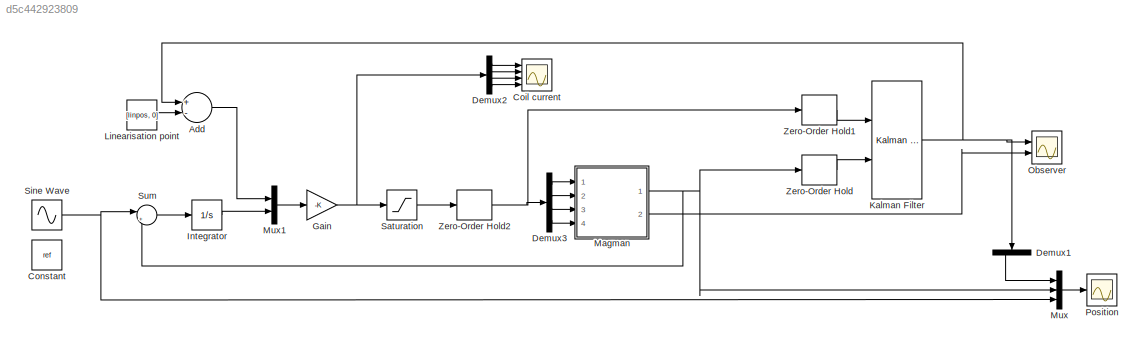
MODEL slx_d5c442923809
KIND model
CONFIG AbsTol = auto
CONFIG EnableMultiTasking = off
CONFIG FixedStep = auto
CONFIG MaxStep = auto
CONFIG MinStep = auto
CONFIG RelTol = 1e-3
CONFIG SampleTimeConstraint = Unconstrained
CONFIG Solver = VariableStepAuto
CONFIG SolverName = VariableStepAuto
CONFIG StartTime = 0.0
CONFIG StopTime = 35
BLOCK [Sum] Add
  InputSameDT = off
  Inputs = +-
  OutDataTypeStr = Inherit: Inherit via internal rule
  Ports = [2, 1]
  SaturateOnIntegerOverflow = off
BLOCK [Scope] Coil current
  NumInputPorts = 4
  Ports = [4]
  ScopeSpecificationString = Simulink.scopes.TimeScopeBlockCfg('CurrentConfiguration', extmgr.ConfigurationSet(extmgr.Configuration('Core','General UI',true),extmgr.Configuration('Core','Source UI',true),extmgr.Configuration('Sources','WiredSimulink',true,'DataLoggingVariableName','ScopeData2'),extmgr.Configuration('Visuals','Time Domain',true,'SerializedDisplays',{struct('MinYLimReal','-0.57897','MaxYLimReal','0.08156','YLab...<+3475ch>
BLOCK [Constant] Constant
  Value = ref
BLOCK [Demux] Demux1
  DisplayOption = bar
  Outputs = 2
  Ports = [1, 2]
BLOCK [Demux] Demux2
  DisplayOption = bar
  Ports = [1, 4]
BLOCK [Demux] Demux3
  DisplayOption = bar
  Ports = [1, 4]
BLOCK [Gain] Gain
  Gain = -K
  Multiplication = Matrix(K*u)
  OutDataTypeStr = Inherit: Inherit via internal rule
  ParamDataTypeStr = Inherit: Inherit via internal rule
  SaturateOnIntegerOverflow = off
BLOCK [Integrator] Integrator
  Ports = [1, 1]
BLOCK [Reference] Kalman Filter  REF=ctrlSharedLib/Kalman Filter
  Ports = [2, 1]
  SourceBlock = ctrlSharedLib/Kalman Filter
  SourceType = ctrlKalmanFilter
BLOCK [Constant] Linearisation point
  Value = [linpos, 0]
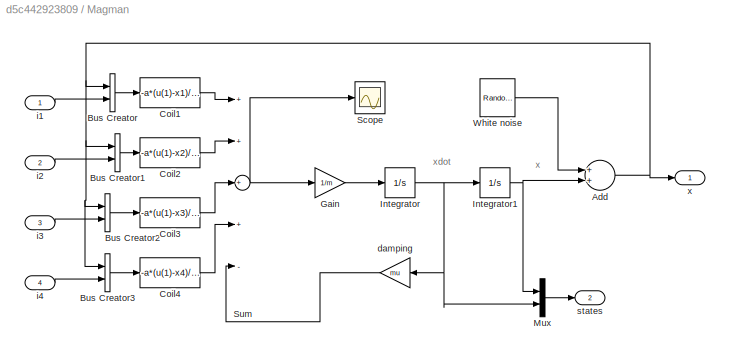
BLOCK [SubSystem] Magman
  Ports = [4, 2]
  RequestExecContextInheritance = off
  Variant = off
BLOCK [Sum] Magman/Add
  InputSameDT = off
  OutDataTypeStr = Inherit: Inherit via internal rule
  Ports = [2, 1]
  SaturateOnIntegerOverflow = off
BLOCK [BusCreator] Magman/Bus Creator
  DisplayOption = bar
  InheritFromInputs = on
  Inputs = 2
  Ports = [2, 1]
BLOCK [BusCreator] Magman/Bus Creator1
  DisplayOption = bar
  InheritFromInputs = on
  Inputs = 2
  Ports = [2, 1]
BLOCK [BusCreator] Magman/Bus Creator2
  DisplayOption = bar
  InheritFromInputs = on
  Inputs = 2
  Ports = [2, 1]
BLOCK [BusCreator] Magman/Bus Creator3
  DisplayOption = bar
  InheritFromInputs = on
  Inputs = 2
  Ports = [2, 1]
BLOCK [Fcn] Magman/Coil1
  Expr = -a*(u(1)-x1)/(((u(1)-x1)^2+b)^3)*(u(2))
BLOCK [Fcn] Magman/Coil2
  Expr = -a*(u(1)-x2)/(((u(1)-x2)^2+b)^3)*(u(2))
BLOCK [Fcn] Magman/Coil3
  Expr = -a*(u(1)-x3)/(((u(1)-x3)^2+b)^3)*(u(2))
BLOCK [Fcn] Magman/Coil4
  Expr = -a*(u(1)-x4)/(((u(1)-x4)^2+b)^3)*(u(2))
BLOCK [Gain] Magman/Gain
  Gain = 1/m
  OutDataTypeStr = Inherit: Inherit via internal rule
  ParamDataTypeStr = Inherit: Inherit via internal rule
  SaturateOnIntegerOverflow = off
BLOCK [Integrator] Magman/Integrator
  ContinuousStateAttributes = 'xdot'
  Ports = [1, 1]
BLOCK [Integrator] Magman/Integrator1
  ContinuousStateAttributes = 'x'
  InitialCondition = x00
  Ports = [1, 1]
BLOCK [Mux] Magman/Mux
  DisplayOption = bar
  Inputs = 2
  Ports = [2, 1]
BLOCK [Scope] Magman/Scope
  NumInputPorts = 1
  Ports = [1]
  ScopeSpecificationString = Simulink.scopes.TimeScopeBlockCfg('CurrentConfiguration', extmgr.ConfigurationSet(extmgr.Configuration('Core','General UI',true),extmgr.Configuration('Core','Source UI',true),extmgr.Configuration('Sources','WiredSimulink',true,'DataLoggingVariableName','ScopeData1'),extmgr.Configuration('Visuals','Time Domain',true,'SerializedDisplays',{struct('MinYLimReal','-0.00363','MaxYLimReal','0.01655','YLab...<+1388ch>
BLOCK [Sum] Magman/Sum
  InputSameDT = off
  Inputs = ++++-
  OutDataTypeStr = Inherit: Inherit via internal rule
  Ports = [5, 1]
  SaturateOnIntegerOverflow = off
BLOCK [Reference] Magman/White noise  REF=dspsrcs4/Random
Source
  Ports = [0, 1]
  SourceBlock = dspsrcs4/Random\nSource
  SourceType = Random Source
  UserDataPersistent = on
BLOCK [Gain] Magman/damping
  Gain = mu
  OutDataTypeStr = Inherit: Inherit via internal rule
  ParamDataTypeStr = Inherit: Inherit via internal rule
  SaturateOnIntegerOverflow = off
BLOCK [Inport] Magman/i1
  IconDisplay = Port number
BLOCK [Inport] Magman/i2
  IconDisplay = Port number
  Port = 2
BLOCK [Inport] Magman/i3
  IconDisplay = Port number
  Port = 3
BLOCK [Inport] Magman/i4
  IconDisplay = Port number
  Port = 4
BLOCK [Outport] Magman/states
  IconDisplay = Port number
  Port = 2
BLOCK [Outport] Magman/x
  IconDisplay = Port number
BLOCK [Mux] Mux
  DisplayOption = bar
  Inputs = 3
  Ports = [3, 1]
BLOCK [Mux] Mux1
  DisplayOption = bar
  Inputs = 2
  Ports = [2, 1]
BLOCK [Scope] Observer
  NumInputPorts = 2
  Ports = [2]
  ScopeSpecificationString = Simulink.scopes.TimeScopeBlockCfg('CurrentConfiguration', extmgr.ConfigurationSet(extmgr.Configuration('Core','General UI',true),extmgr.Configuration('Core','Source UI',true),extmgr.Configuration('Sources','WiredSimulink',true),extmgr.Configuration('Visuals','Time Domain',true,'SerializedDisplays',{struct('MinYLimReal','-0.03982','MaxYLimReal','0.11543','YLabelReal','','MinYLimMag','0.00000','MaxY...<+1499ch>
BLOCK [Scope] Position
  NumInputPorts = 1
  Ports = [1]
  ScopeSpecificationString = Simulink.scopes.TimeScopeBlockCfg('CurrentConfiguration', extmgr.ConfigurationSet(extmgr.Configuration('Core','General UI',true),extmgr.Configuration('Core','Source UI',true),extmgr.Configuration('Sources','WiredSimulink',true,'DataLoggingVariableName','ScopeData1'),extmgr.Configuration('Visuals','Time Domain',true,'SerializedDisplays',{struct('MinYLimReal','-0.00921','MaxYLimReal','0.08288','YLab...<+1500ch>
BLOCK [Saturate] Saturation
  InputPortMap = u0
  LowerLimit = 0
  Ports = [1, 1]
  UpperLimit = 0.45
BLOCK [Sin] Sine Wave
  Amplitude = 0.005
  Bias = x2
  Frequency = 0.5
  Ports = [0, 1]
  SampleTime = 0
BLOCK [Sum] Sum
  IconShape = round
  InputSameDT = off
  Inputs = |+-
  OutDataTypeStr = Inherit: Inherit via internal rule
  Ports = [2, 1]
  SaturateOnIntegerOverflow = off
BLOCK [ZeroOrderHold] Zero-Order Hold
  SampleTime = h
BLOCK [ZeroOrderHold] Zero-Order Hold1
  SampleTime = h
BLOCK [ZeroOrderHold] Zero-Order Hold2
  SampleTime = h
ANNOTATION Magman: x
ANNOTATION Magman: xdot
LINE Add:1 -> Mux1:1
LINE Demux1:1 -> Mux:1
LINE Demux2:1 -> Coil current:1
LINE Demux2:2 -> Coil current:2
LINE Demux2:3 -> Coil current:3
LINE Demux2:4 -> Coil current:4
LINE Demux3:1 -> Magman:1
LINE Demux3:2 -> Magman:2
LINE Demux3:3 -> Magman:3
LINE Demux3:4 -> Magman:4
NET Gain:1 -> Demux2:1, Saturation:1
LINE Integrator:1 -> Mux1:2
NET Kalman Filter:1 -> Add:1, Demux1:1, Observer:1
LINE Linearisation point:1 -> Add:2
NET Magman/Add:1 -> Magman/Bus Creator1:1, Magman/Bus Creator2:1, Magman/Bus Creator3:1, Magman/Bus Creator:1, Magman/x:1
LINE Magman/Bus Creator1:1 -> Magman/Coil2:1
LINE Magman/Bus Creator2:1 -> Magman/Coil3:1
LINE Magman/Bus Creator3:1 -> Magman/Coil4:1
LINE Magman/Bus Creator:1 -> Magman/Coil1:1
LINE Magman/Coil1:1 -> Magman/Sum:1
LINE Magman/Coil2:1 -> Magman/Sum:2
LINE Magman/Coil3:1 -> Magman/Sum:3
LINE Magman/Coil4:1 -> Magman/Sum:4
LINE Magman/Gain:1 -> Magman/Integrator:1
NET Magman/Integrator1:1 -> Magman/Add:2, Magman/Mux:1
NET Magman/Integrator:1 -> Magman/Integrator1:1, Magman/Mux:2, Magman/damping:1
LINE Magman/Mux:1 -> Magman/states:1
NET Magman/Sum:1 -> Magman/Gain:1, Magman/Scope:1
LINE Magman/White noise:1 -> Magman/Add:1
LINE Magman/damping:1 -> Magman/Sum:5
LINE Magman/i1:1 -> Magman/Bus Creator:2
LINE Magman/i2:1 -> Magman/Bus Creator1:2
LINE Magman/i3:1 -> Magman/Bus Creator2:2
LINE Magman/i4:1 -> Magman/Bus Creator3:2
NET Magman:1 -> Mux:2, Sum:2, Zero-Order Hold:1
LINE Magman:2 -> Observer:2
LINE Mux1:1 -> Gain:1
LINE Mux:1 -> Position:1
LINE Saturation:1 -> Zero-Order Hold2:1
NET Sine Wave:1 -> Mux:3, Sum:1
LINE Sum:1 -> Integrator:1
LINE Zero-Order Hold1:1 -> Kalman Filter:1
NET Zero-Order Hold2:1 -> Demux3:1, Zero-Order Hold1:1
LINE Zero-Order Hold:1 -> Kalman Filter:2
note: NET lines group one-source signal fan-out (src -> all destinations, sorted); 1:1 wires keep LINE
